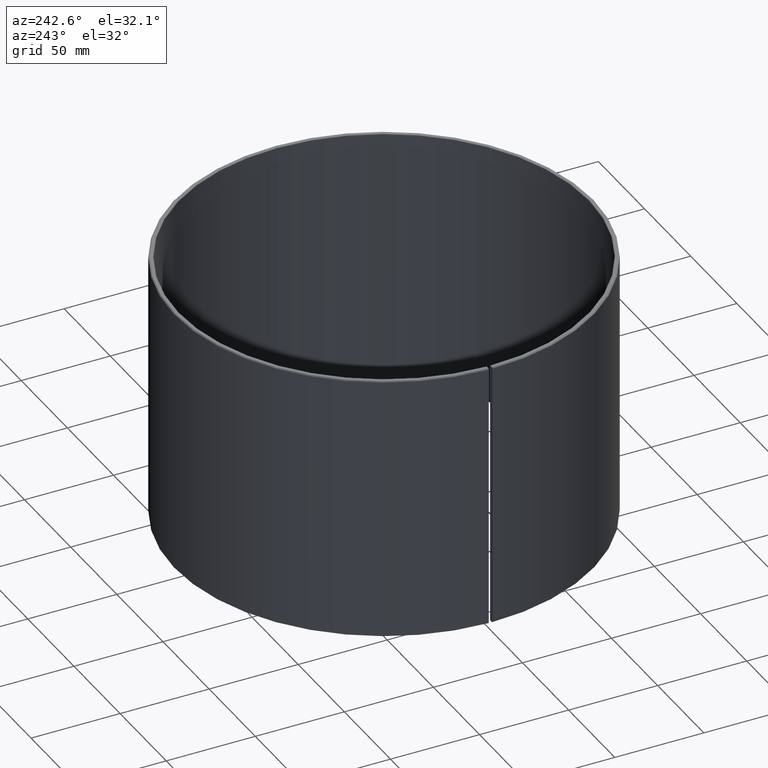
[diagram: clean part render]
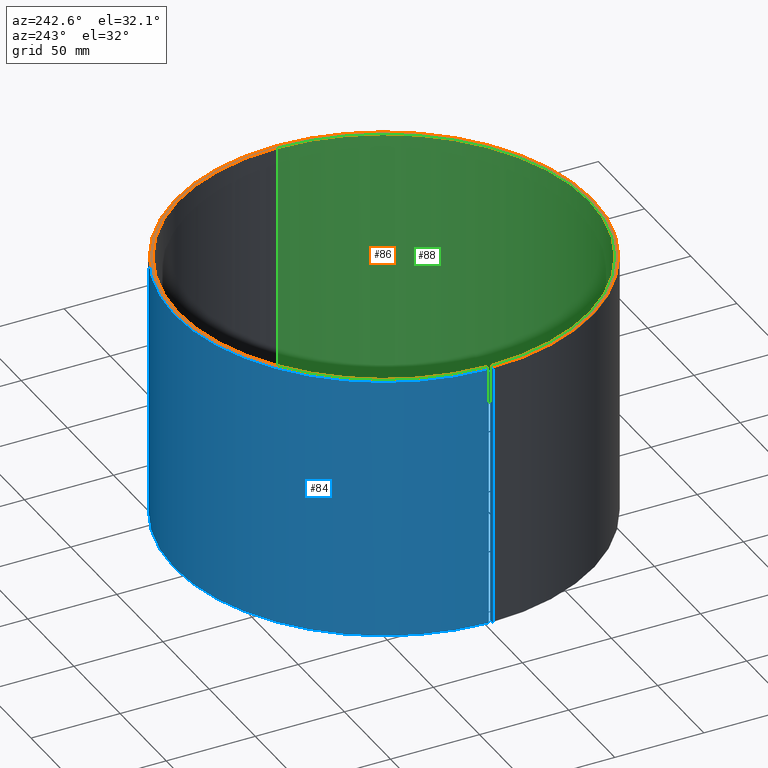
[diagram: same view with three faces highlighted in distinct colors, each labeled with its STEP entity id]
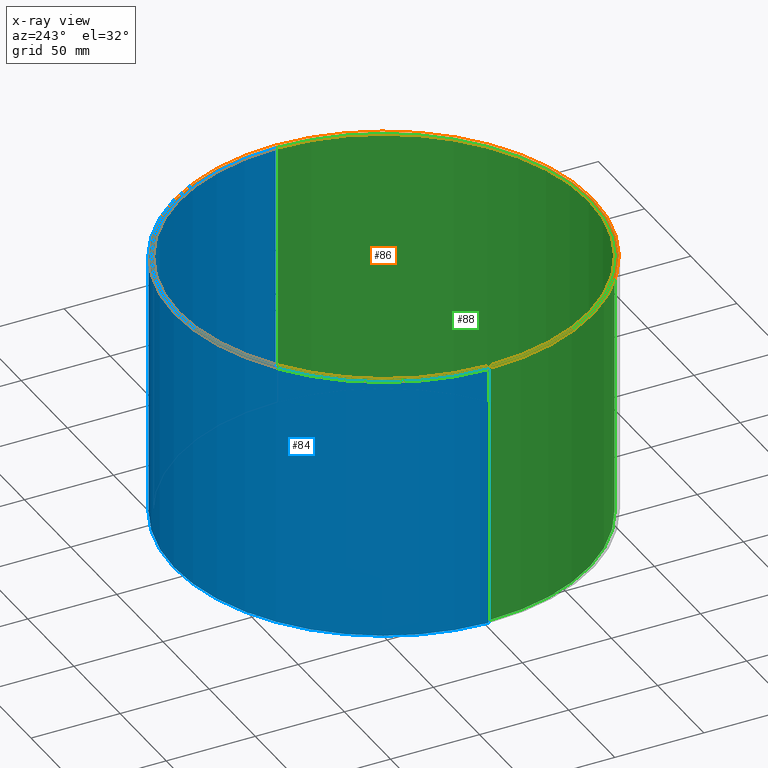
[diagram: x-ray of the same camera — body ghosted, the three highlighted faces saturated]
A machine part, auxiliary view with three faces highlighted in distinct colors.
The next image is the same camera in x-ray (body ghosted, the three faces saturated) — at least one of them is partly hidden behind the body in this view.
Their STEP definitions:

[orange] entity #86 — the highlighted planar face has unit normal (0, -0, 1).
#86=ADVANCED_FACE('',(#114),#115,.T.);
#114=FACE_OUTER_BOUND('',#146,.T.);
#115=PLANE('',#147);
#146=EDGE_LOOP('',(#235,#236,#237,#238,#239,#240));
#147=AXIS2_PLACEMENT_3D('',#241,#242,#243);
#235=ORIENTED_EDGE('',*,*,#312,.T.);
#236=ORIENTED_EDGE('',*,*,#285,.F.);
#237=ORIENTED_EDGE('',*,*,#313,.F.);
#238=ORIENTED_EDGE('',*,*,#314,.F.);
#239=ORIENTED_EDGE('',*,*,#288,.T.);
#240=ORIENTED_EDGE('',*,*,#311,.T.);
#241=CARTESIAN_POINT('',(-116.1,-1.30734360481651E-013,150.0));
#242=DIRECTION('',(5.48707263966372E-016,-6.09939603923743E-016,1.0));
#243=DIRECTION('',(-1.0,-3.21624529935327E-016,5.48707263966372E-016));
#285=EDGE_CURVE('',#326,#328,#329,.T.);
#288=EDGE_CURVE('',#334,#331,#335,.T.);
#311=EDGE_CURVE('',#331,#369,#371,.T.);
#312=EDGE_CURVE('',#369,#328,#372,.T.);
#313=EDGE_CURVE('',#373,#326,#374,.T.);
#314=EDGE_CURVE('',#334,#373,#375,.T.);
#326=VERTEX_POINT('',#390);
#328=VERTEX_POINT('',#393);
#329=CIRCLE('',#394,115.2);
#331=VERTEX_POINT('',#397);
#334=VERTEX_POINT('',#401);
#335=CIRCLE('',#402,117.0);
#369=VERTEX_POINT('',#448);
#371=CIRCLE('',#451,117.0);
#372=LINE('',#452,#453);
#373=VERTEX_POINT('',#454);
#374=CIRCLE('',#455,115.2);
#375=LINE('',#456,#457);
#390=CARTESIAN_POINT('',(115.2,-6.90077930016693E-014,150.0));
#393=CARTESIAN_POINT('',(-115.182454482016,2.01051722157494,150.0));
#394=AXIS2_PLACEMENT_3D('',#473,#474,#475);
#397=CARTESIAN_POINT('',(117.0,-6.86411127187621E-014,150.0));
#401=CARTESIAN_POINT('',(-117.0,-1.31189953967017E-013,150.0));
#402=AXIS2_PLACEMENT_3D('',#478,#479,#480);
#448=CARTESIAN_POINT('',(-116.982180333298,2.04193155316205,150.0));
#451=AXIS2_PLACEMENT_3D('',#521,#522,#523);
#452=CARTESIAN_POINT('',(-116.982180333298,2.04193155316205,150.0));
#453=VECTOR('',#524,10.0);
#454=CARTESIAN_POINT('',(-115.2,-1.3138899002091E-013,150.0));
#455=AXIS2_PLACEMENT_3D('',#525,#526,#527);
#456=CARTESIAN_POINT('',(-117.0,-1.31189953967017E-013,150.0));
#457=VECTOR('',#528,10.0);
#473=CARTESIAN_POINT('',(8.37696165478938E-014,-9.30570383373225E-014,150.0));
#474=DIRECTION('',(5.48707263966372E-016,-6.09939603923743E-016,1.0));
#475=DIRECTION('',(-1.0,-3.31278643192938E-016,5.48707263966372E-016));
#478=CARTESIAN_POINT('',(8.37696165478938E-014,-9.30570383373225E-014,150.0));
#479=DIRECTION('',(5.48707263966372E-016,-6.09939603923743E-016,1.0));
#480=DIRECTION('',(-1.0,-3.31278643192938E-016,5.48707263966372E-016));
#521=CARTESIAN_POINT('',(8.37696165478938E-014,-9.30570383373225E-014,150.0));
#522=DIRECTION('',(5.48707263966372E-016,-6.09939603923743E-016,1.0));
#523=DIRECTION('',(-1.0,-3.31278643192938E-016,5.48707263966372E-016));
#524=DIRECTION('',(0.999847695156391,-0.0174524064372832,-5.5926860706222E-016));
#525=CARTESIAN_POINT('',(8.37696165478938E-014,-9.30570383373225E-014,150.0));
#526=DIRECTION('',(5.48707263966372E-016,-6.09939603923743E-016,1.0));
#527=DIRECTION('',(-1.0,-3.31278643192938E-016,5.48707263966372E-016));
#528=DIRECTION('',(1.0,3.21624529935327E-016,-5.48707263966372E-016));

[blue] entity #84 — the highlighted cylindrical surface (partial cylindrical patch) has radius 117.5 mm, axis along (0, -0, 1).
#84=ADVANCED_FACE('',(#110),#111,.T.);
#110=FACE_OUTER_BOUND('',#142,.T.);
#111=CYLINDRICAL_SURFACE('',#143,117.5);
#142=EDGE_LOOP('',(#221,#222,#223,#224));
#143=AXIS2_PLACEMENT_3D('',#225,#226,#227);
#221=ORIENTED_EDGE('',*,*,#291,.T.);
#222=ORIENTED_EDGE('',*,*,#307,.T.);
#223=ORIENTED_EDGE('',*,*,#308,.T.);
#224=ORIENTED_EDGE('',*,*,#309,.F.);
#225=CARTESIAN_POINT('',(4.26165717504158E-014,-4.74631014413437E-014,75.0));
#226=DIRECTION('',(5.48707263966372E-016,-6.09939603923743E-016,1.0));
#227=DIRECTION('',(-1.0,-3.31278643192938E-016,5.48707263966372E-016));
#291=EDGE_CURVE('',#332,#339,#340,.T.);
#307=EDGE_CURVE('',#339,#363,#365,.T.);
#308=EDGE_CURVE('',#363,#366,#367,.T.);
#309=EDGE_CURVE('',#332,#366,#368,.T.);
#332=VERTEX_POINT('',#398);
#339=VERTEX_POINT('',#407);
#340=LINE('',#408,#409);
#363=VERTEX_POINT('',#440);
#365=CIRCLE('',#443,117.5);
#366=VERTEX_POINT('',#444);
#367=LINE('',#445,#446);
#368=CIRCLE('',#447,117.5);
#398=CARTESIAN_POINT('',(117.5,-6.83679612484738E-014,149.5));
#407=CARTESIAN_POINT('',(117.5,2.23768144228512E-014,0.499999999999945));
#408=CARTESIAN_POINT('',(117.5,-2.2927460756155E-014,74.9999999999999));
#409=VECTOR('',#485,1.0);
#440=CARTESIAN_POINT('',(-117.482104180876,2.05065775638078,0.500000000000075));
#443=AXIS2_PLACEMENT_3D('',#513,#514,#515);
#444=CARTESIAN_POINT('',(-117.482104180876,2.05065775638069,149.5));
#445=CARTESIAN_POINT('',(-117.482104180876,2.05065775638078,0.500000000000068));
#446=VECTOR('',#516,10.0);
#447=AXIS2_PLACEMENT_3D('',#517,#518,#519);
#485=DIRECTION('',(-5.48707263966372E-016,6.09939603923743E-016,-1.0));
#513=CARTESIAN_POINT('',(1.73788058492098E-015,-2.1435181773482E-015,0.500000000000009));
#514=DIRECTION('',(5.48707263966372E-016,-6.09939603923743E-016,1.0));
#515=DIRECTION('',(-1.0,-3.31278643192937E-016,5.48707263966372E-016));
#516=DIRECTION('',(6.67805971659409E-016,-6.17847478578657E-016,1.0));
#517=CARTESIAN_POINT('',(8.34952629159106E-014,-9.27826847053393E-014,149.5));
#518=DIRECTION('',(5.48707263966372E-016,-6.09939603923743E-016,1.0));
#519=DIRECTION('',(-1.0,-3.31278643192938E-016,5.48707263966372E-016));

[green] entity #88 — the highlighted cylindrical surface (partial cylindrical patch) has radius 115 mm, axis along (0, -0, 1).
#88=ADVANCED_FACE('',(#118),#119,.F.);
#118=FACE_OUTER_BOUND('',#150,.T.);
#119=CYLINDRICAL_SURFACE('',#151,115.0);
#150=EDGE_LOOP('',(#251,#252,#253,#254));
#151=AXIS2_PLACEMENT_3D('',#255,#256,#257);
#251=ORIENTED_EDGE('',*,*,#280,.T.);
#252=ORIENTED_EDGE('',*,*,#302,.F.);
#253=ORIENTED_EDGE('',*,*,#317,.F.);
#254=ORIENTED_EDGE('',*,*,#315,.T.);
#255=CARTESIAN_POINT('',(4.26165717504158E-014,-4.74631014413437E-014,75.0));
#256=DIRECTION('',(5.48707263966372E-016,-6.09939603923743E-016,1.0));
#257=DIRECTION('',(-1.0,-3.31278643192938E-016,5.48707263966372E-016));
#280=EDGE_CURVE('',#318,#319,#320,.T.);
#302=EDGE_CURVE('',#356,#319,#358,.T.);
#315=EDGE_CURVE('',#376,#318,#377,.T.);
#317=EDGE_CURVE('',#376,#356,#379,.T.);
#318=VERTEX_POINT('',#380);
#319=VERTEX_POINT('',#381);
#320=LINE('',#382,#383);
#356=VERTEX_POINT('',#430);
#358=CIRCLE('',#433,115.0);
#376=VERTEX_POINT('',#458);
#377=CIRCLE('',#459,115.0);
#379=LINE('',#462,#463);
#380=CARTESIAN_POINT('',(115.0,-6.89275678735402E-014,149.8));
#381=CARTESIAN_POINT('',(115.0,2.20285765448392E-014,0.199999999999935));
#382=CARTESIAN_POINT('',(115.0,-2.34494956643505E-014,74.9999999999999));
#383=VECTOR('',#464,1.0);
#430=CARTESIAN_POINT('',(-115.0,-3.82358848634421E-014,0.200000000000065));
#433=AXIS2_PLACEMENT_3D('',#504,#505,#506);
#458=CARTESIAN_POINT('',(-115.0,-1.30314498774438E-013,149.8));
#459=AXIS2_PLACEMENT_3D('',#529,#530,#531);
#462=CARTESIAN_POINT('',(-115.0,-1.30314498774438E-013,149.8));
#463=VECTOR('',#533,10.0);
#464=DIRECTION('',(-5.48707263966372E-016,6.09939603923743E-016,-1.0));
#504=CARTESIAN_POINT('',(1.57326840573107E-015,-1.97890599815828E-015,0.199999999999998));
#505=DIRECTION('',(5.48707263966372E-016,-6.09939603923743E-016,1.0));
#506=DIRECTION('',(-1.0,-3.31278643192938E-016,5.48707263966372E-016));
#529=CARTESIAN_POINT('',(8.36598750951005E-014,-9.29472968845292E-014,149.8));
#530=DIRECTION('',(5.48707263966372E-016,-6.09939603923743E-016,1.0));
#531=DIRECTION('',(-1.0,-3.31278643192938E-016,5.48707263966372E-016));
#533=DIRECTION('',(-7.86188124848759E-016,6.15498756089546E-016,-1.0));